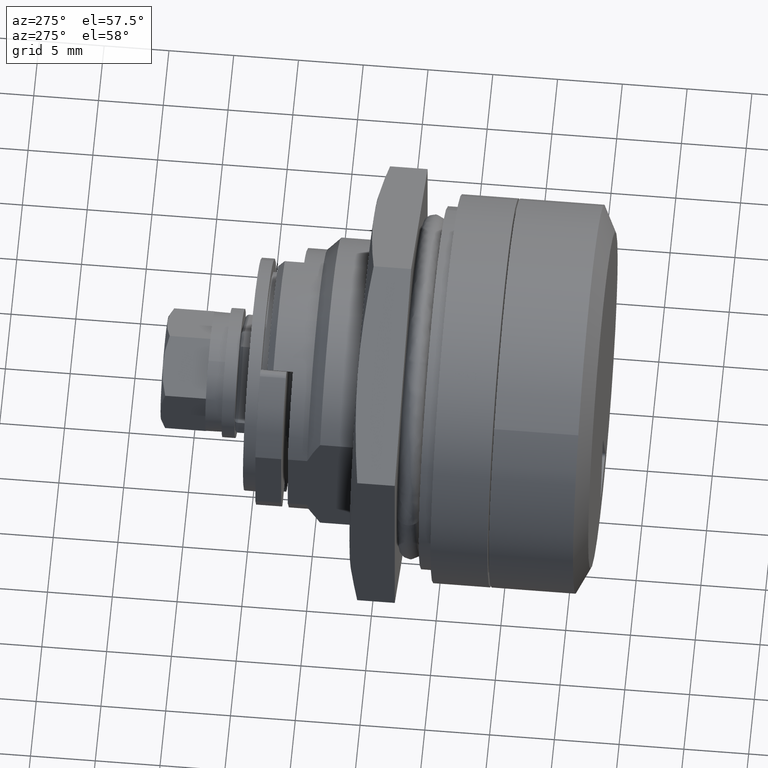
[diagram: clean part render]
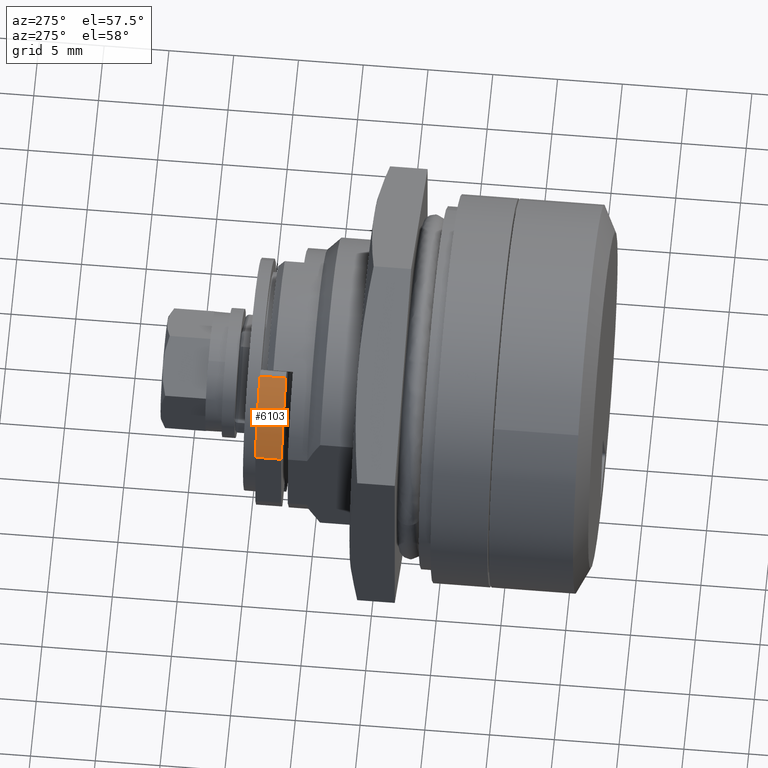
[diagram: same view with one face highlighted and labeled with its STEP entity id]
A machine part, auxiliary view. The second image highlights one B-rep face of the part: STEP entity #6103.
In plain terms, the highlighted face is a freeform B-spline surface patch.
Its self-contained STEP definition (entity closure, byte-faithful):
#5657=CARTESIAN_POINT('',(14.0,9.500000000000000,3.122498999199200));
#5658=VERTEX_POINT('',#5657);
#5664=CARTESIAN_POINT('',(14.0,5.448872543841340,8.385093201686670));
#5665=VERTEX_POINT('',#5664);
#5666=CARTESIAN_POINT('',(14.0,9.500000000000000,3.122498999199200));
#5667=CARTESIAN_POINT('',(13.999999999999970,9.246938064209575,3.892986931879989));
#5668=CARTESIAN_POINT('',(14.000000000000041,8.627406738207624,5.210986966964025));
#5669=CARTESIAN_POINT('',(13.999999999999970,7.244625121374974,7.007243801557330));
#5670=CARTESIAN_POINT('',(14.000000000000030,6.128999342308139,7.943366388648701));
#5671=CARTESIAN_POINT('',(14.0,5.448872543841340,8.385093201686670));
#5672=B_SPLINE_CURVE_WITH_KNOTS('',3,(#5666,#5667,#5668,#5669,#5670,#5671),.UNSPECIFIED.,.F.,.U.,(4,1,1,4),(0.000000013898998,2.432919607571676,4.336924585171007,6.769844042525555),.UNSPECIFIED.);
#5673=EDGE_CURVE('',#5658,#5665,#5672,.T.);
#5809=CARTESIAN_POINT('',(12.0,5.448872543841340,8.385093201686670));
#5810=VERTEX_POINT('',#5809);
#5821=CARTESIAN_POINT('',(12.0,9.500000000000000,3.122498999199200));
#5822=VERTEX_POINT('',#5821);
#5823=CARTESIAN_POINT('',(12.0,9.500000000000000,3.122498999199200));
#5824=CARTESIAN_POINT('',(12.0,9.334887071332439,3.624959036125156));
#5825=CARTESIAN_POINT('',(12.000000000000020,8.938320223830795,4.570944699657559));
#5826=CARTESIAN_POINT('',(11.999999999999980,8.069425049727402,5.987433354497592));
#5827=CARTESIAN_POINT('',(11.999999999999980,6.925634642250404,7.292760880792687));
#5828=CARTESIAN_POINT('',(12.000000000000030,5.951511125267926,8.058519899728530));
#5829=CARTESIAN_POINT('',(12.0,5.448872543841340,8.385093201686670));
#5830=B_SPLINE_CURVE_WITH_KNOTS('',3,(#5823,#5824,#5825,#5826,#5827,#5828,#5829),.UNSPECIFIED.,.F.,.U.,(4,1,1,1,4),(0.000000013898998,1.586681793435733,3.067599899490512,4.971603704979196,6.769844042525555),.UNSPECIFIED.);
#5831=EDGE_CURVE('',#5822,#5810,#5830,.T.);
#6069=CARTESIAN_POINT('',(12.0,5.448872543841340,8.385093201686670));
#6070=CARTESIAN_POINT('',(14.0,5.448872543841340,8.385093201686670));
#6071=QUASI_UNIFORM_CURVE('',1,(#6069,#6070),.UNSPECIFIED.,.F.,.U.);
#6072=EDGE_CURVE('',#5810,#5665,#6071,.T.);
#6079=CARTESIAN_POINT('',(11.949999999999999,5.195955792257413,8.544123325707943));
#6080=CARTESIAN_POINT('',(14.051250000000000,5.195955792257413,8.544123325707943));
#6081=CARTESIAN_POINT('',(11.950000000000005,8.510294949164512,6.528567243081982));
#6082=CARTESIAN_POINT('',(14.051250000000001,8.510294949164512,6.528567243081982));
#6083=CARTESIAN_POINT('',(11.949999999999998,9.598470816852622,2.805237597428862));
#6084=CARTESIAN_POINT('',(14.051250000000001,9.598470816852622,2.805237597428862));
#6092=(BOUNDED_SURFACE()B_SPLINE_SURFACE(1,2,((#6079,#6081,#6083),(#6080,#6082,#6084)),.UNSPECIFIED.,.F.,.F.,.U.)B_SPLINE_SURFACE_WITH_KNOTS((2,2),(3,3),(0.0,2.101250000000000),(0.0,7.486376880751871),.UNSPECIFIED.)GEOMETRIC_REPRESENTATION_ITEM()RATIONAL_B_SPLINE_SURFACE(((1.0,0.928367339886664,0.991553557381339),(1.0,0.928367339886664,0.991553557381339)))REPRESENTATION_ITEM('')SURFACE());
#6093=ORIENTED_EDGE('',*,*,#5673,.F.);
#6094=CARTESIAN_POINT('',(12.0,9.500000000000000,3.122498999199200));
#6095=CARTESIAN_POINT('',(14.0,9.500000000000000,3.122498999199200));
#6096=QUASI_UNIFORM_CURVE('',1,(#6094,#6095),.UNSPECIFIED.,.F.,.U.);
#6097=EDGE_CURVE('',#5822,#5658,#6096,.T.);
#6098=ORIENTED_EDGE('',*,*,#6097,.F.);
#6099=ORIENTED_EDGE('',*,*,#5831,.T.);
#6100=ORIENTED_EDGE('',*,*,#6072,.T.);
#6101=EDGE_LOOP('',(#6093,#6098,#6099,#6100));
#6102=FACE_OUTER_BOUND('',#6101,.T.);
#6103=ADVANCED_FACE('',(#6102),#6092,.T.);